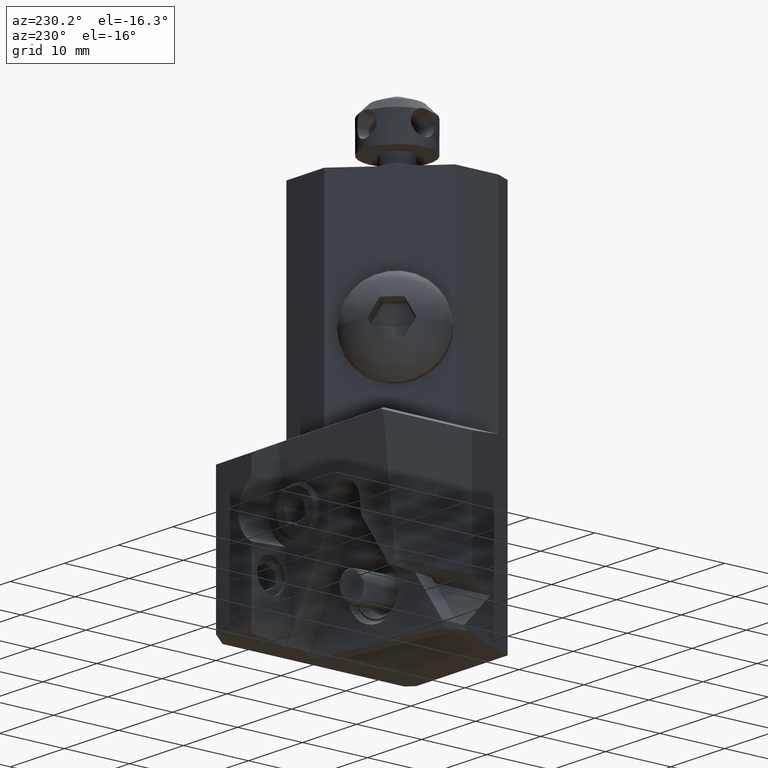
[diagram: clean part render]
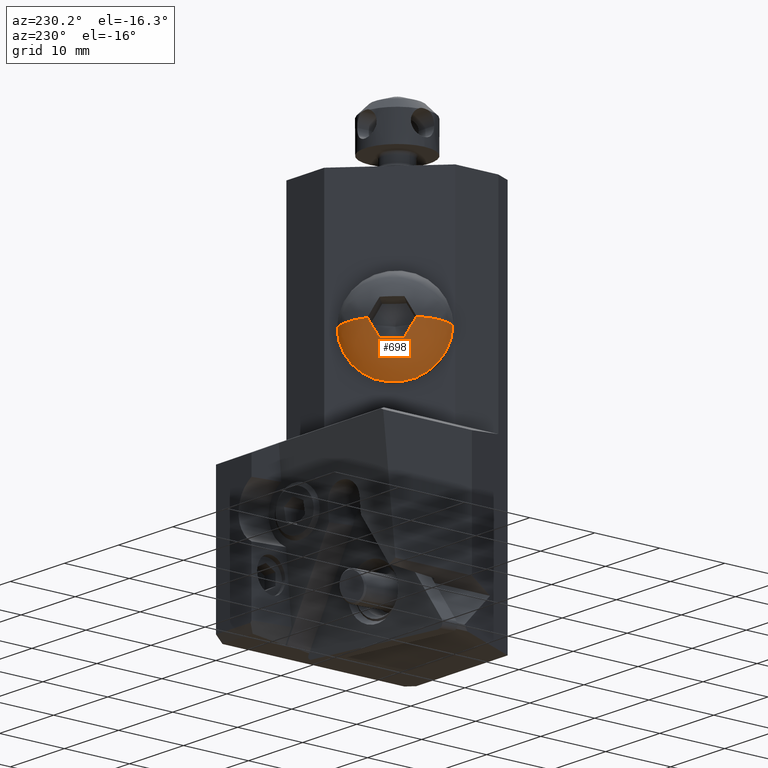
[diagram: same view with one face highlighted and labeled with its STEP entity id]
A machine part, auxiliary view. The second image highlights one B-rep face of the part: STEP entity #698.
In plain terms, the highlighted face is a freeform B-spline surface patch.
Its self-contained STEP definition (entity closure, byte-faithful):
#31=(
BOUNDED_SURFACE()
B_SPLINE_SURFACE(3,3,((#8134,#8135,#8136,#8137),(#8138,#8139,#8140,#8141),
(#8142,#8143,#8144,#8145),(#8146,#8147,#8148,#8149)),.UNSPECIFIED.,.F.,
 .F.,.F.)
B_SPLINE_SURFACE_WITH_KNOTS((4,4),(4,4),(0.,1.),(0.,1.),.UNSPECIFIED.)
GEOMETRIC_REPRESENTATION_ITEM()
RATIONAL_B_SPLINE_SURFACE(((1.,0.333333333333413,0.333333333333413,1.),
(0.909166972575267,0.303055657525162,0.303055657525162,0.909166972575267),
(0.909166972575267,0.303055657525162,0.303055657525162,0.909166972575267),
(1.,0.333333333333413,0.333333333333413,1.)))
REPRESENTATION_ITEM('')
SURFACE()
);
#215=B_SPLINE_CURVE_WITH_KNOTS('',3,(#8105,#8106,#8107,#8108),
 .UNSPECIFIED.,.F.,.F.,(4,4),(0.,1.),.UNSPECIFIED.);
#216=B_SPLINE_CURVE_WITH_KNOTS('',3,(#8111,#8112,#8113,#8114,#8115,#8116,
#8117,#8118,#8119,#8120,#8121,#8122,#8123,#8124,#8125),.UNSPECIFIED.,.F.,
 .F.,(4,1,1,1,1,1,1,1,1,1,1,1,4),(0.,0.08333333333333,0.1666666666667,0.25,
0.3333333333333,0.4166666666667,0.5,0.5833333333333,0.6666666666667,0.75,
0.8333333333333,0.9166666666667,1.),.UNSPECIFIED.);
#217=B_SPLINE_CURVE_WITH_KNOTS('',3,(#8127,#8128,#8129,#8130),
 .UNSPECIFIED.,.F.,.F.,(4,4),(0.,1.),.UNSPECIFIED.);
#491=CIRCLE('',#4410,6.874999999997);
#492=CIRCLE('',#4412,6.);
#493=CIRCLE('',#4413,6.);
#698=ADVANCED_FACE('',(#991),#31,.T.);
#991=FACE_OUTER_BOUND('',#1222,.T.);
#1222=EDGE_LOOP('',(#2321,#2322,#2323,#2324,#2325,#2326));
#2321=ORIENTED_EDGE('',*,*,#3276,.F.);
#2322=ORIENTED_EDGE('',*,*,#3277,.F.);
#2323=ORIENTED_EDGE('',*,*,#3278,.F.);
#2324=ORIENTED_EDGE('',*,*,#3279,.T.);
#2325=ORIENTED_EDGE('',*,*,#3275,.F.);
#2326=ORIENTED_EDGE('',*,*,#3280,.T.);
#2724=VERTEX_POINT('',#8098);
#2725=VERTEX_POINT('',#8100);
#2726=VERTEX_POINT('',#8109);
#2727=VERTEX_POINT('',#8110);
#2728=VERTEX_POINT('',#8126);
#2729=VERTEX_POINT('',#8131);
#3275=EDGE_CURVE('',#2725,#2724,#491,.T.);
#3276=EDGE_CURVE('',#2726,#2727,#215,.T.);
#3277=EDGE_CURVE('',#2728,#2726,#216,.T.);
#3278=EDGE_CURVE('',#2729,#2728,#217,.T.);
#3279=EDGE_CURVE('',#2729,#2724,#492,.T.);
#3280=EDGE_CURVE('',#2725,#2727,#493,.T.);
#4410=AXIS2_PLACEMENT_3D('',#8103,#5532,#5533);
#4412=AXIS2_PLACEMENT_3D('',#8132,#5536,#5537);
#4413=AXIS2_PLACEMENT_3D('',#8133,#5538,#5539);
#5532=DIRECTION('',(0.707106781186548,-0.707106781186548,0.));
#5533=DIRECTION('',(-0.707106781186548,-0.707106781186548,0.));
#5536=DIRECTION('',(0.,0.,-1.));
#5537=DIRECTION('',(-0.466369756676003,0.884589876755305,0.));
#5538=DIRECTION('',(0.,0.,-1.));
#5539=DIRECTION('',(-0.886668912517589,-0.462404843805594,0.));
#8098=CARTESIAN_POINT('',(-9.705040571786,19.4277588131,-20.));
#8100=CARTESIAN_POINT('',(-19.4277588131,9.705040571786,-20.));
#8103=CARTESIAN_POINT('',(-14.56639969244,14.56639969244,-20.));
#8105=CARTESIAN_POINT('',(-18.3808854925572,16.31208728063,-22.5337500000014));
#8106=CARTESIAN_POINT('',(-18.8324257434105,16.0740281275077,-21.6891666666688));
#8107=CARTESIAN_POINT('',(-19.1772254453971,15.7292284255212,-20.8445833333389));
#8108=CARTESIAN_POINT('',(-19.4152845985196,15.2776881746684,-20.0000000000061));
#8109=CARTESIAN_POINT('',(-18.3808854925586,16.312087280635,-22.5337500000007));
#8110=CARTESIAN_POINT('',(-19.415284598519,15.2776881746695,-20.0000000000008));
#8111=CARTESIAN_POINT('',(-16.31208728064,18.38088549256,-22.53375));
#8112=CARTESIAN_POINT('',(-16.37852500638,18.33225824911,-22.53375));
#8113=CARTESIAN_POINT('',(-16.50979876814,18.23308508219,-22.53375));
#8114=CARTESIAN_POINT('',(-16.70246465293,18.07869917464,-22.53375));
#8115=CARTESIAN_POINT('',(-16.89025675409,17.91973374192,-22.53375));
#8116=CARTESIAN_POINT('',(-17.07204065548,17.75787334293,-22.53375));
#8117=CARTESIAN_POINT('',(-17.25099861263,17.59072011419,-22.53375));
#8118=CARTESIAN_POINT('',(-17.42447626407,17.42102267202,-22.53375));
#8119=CARTESIAN_POINT('',(-17.59402252995,17.24754025433,-22.53375));
#8120=CARTESIAN_POINT('',(-17.76083235802,17.06878993914,-22.53375));
#8121=CARTESIAN_POINT('',(-17.922233636,16.88736848612,-22.53375));
#8122=CARTESIAN_POINT('',(-18.0804792441,16.70028494325,-22.53375));
#8123=CARTESIAN_POINT('',(-18.23386255798,16.50877758767,-22.53375));
#8124=CARTESIAN_POINT('',(-18.33251172218,16.37817869485,-22.53375));
#8125=CARTESIAN_POINT('',(-18.38088549256,16.31208728064,-22.53375));
#8126=CARTESIAN_POINT('',(-16.3120872806349,18.3808854925586,-22.5337500000007));
#8127=CARTESIAN_POINT('',(-15.2776881746706,19.4152845985184,-20.0000000000045));
#8128=CARTESIAN_POINT('',(-15.7292284255215,19.1772254453968,-20.8445833333356));
#8129=CARTESIAN_POINT('',(-16.0740281275091,18.8324257434089,-21.6891666666705));
#8130=CARTESIAN_POINT('',(-16.3120872806299,18.3808854925573,-22.5337500000014));
#8131=CARTESIAN_POINT('',(-15.2776881746695,19.415284598519,-19.9999999999992));
#8132=CARTESIAN_POINT('',(-12.47946963462,14.10774533799,-20.));
#8133=CARTESIAN_POINT('',(-14.10774533799,12.47946963462,-20.));
#8134=CARTESIAN_POINT('',(-15.7452788095295,19.14108323972,-19.9999999999988));
#8135=CARTESIAN_POINT('',(-15.7452788095305,19.1410832397202,-24.8023926803396));
#8136=CARTESIAN_POINT('',(-19.1410832397202,15.7452788095305,-24.8023926803396));
#8137=CARTESIAN_POINT('',(-19.14108323972,15.7452788095295,-19.9999999999988));
#8138=CARTESIAN_POINT('',(-13.8854088367568,20.3478332215103,-19.9999999999991));
#8139=CARTESIAN_POINT('',(-13.8854088367587,20.3478332215106,-29.1392482107259));
#8140=CARTESIAN_POINT('',(-20.3478332215106,13.8854088367587,-29.1392482107259));
#8141=CARTESIAN_POINT('',(-20.3478332215103,13.8854088367568,-19.9999999999991));
#8142=CARTESIAN_POINT('',(-11.670840108844,20.45293880425,-19.9999999999996));
#8143=CARTESIAN_POINT('',(-11.6708401088465,20.4529388042504,-32.4197630811388));
#8144=CARTESIAN_POINT('',(-20.4529388042504,11.6708401088465,-32.4197630811388));
#8145=CARTESIAN_POINT('',(-20.45293880425,11.670840108844,-19.9999999999996));
#8146=CARTESIAN_POINT('',(-9.70504057178042,19.4277588131005,-20.));
#8147=CARTESIAN_POINT('',(-9.7050405717832,19.427758813101,-33.7500000000039));
#8148=CARTESIAN_POINT('',(-19.427758813101,9.7050405717832,-33.7500000000039));
#8149=CARTESIAN_POINT('',(-19.4277588131005,9.70504057178042,-20.));